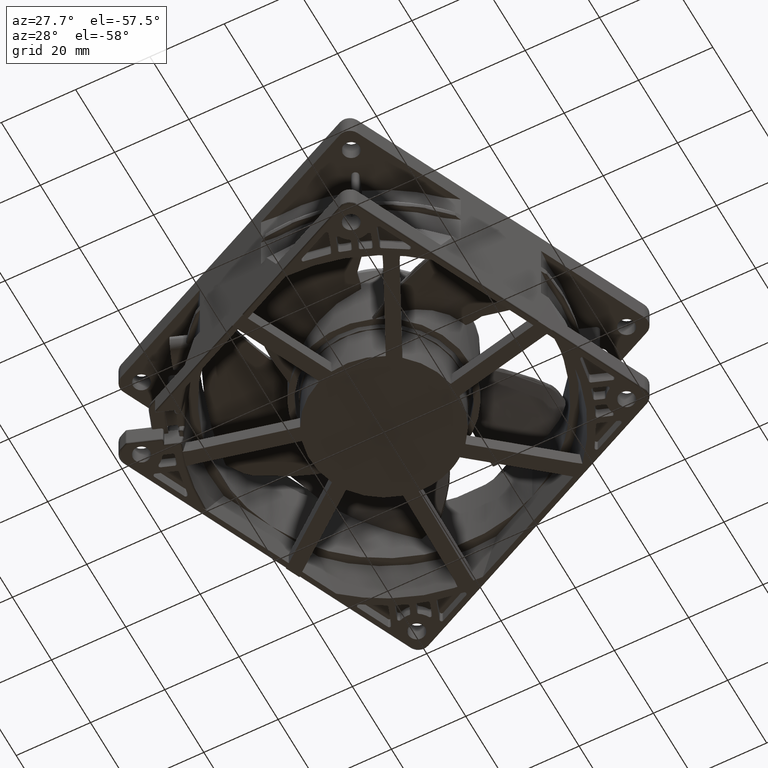
[diagram: clean part render]
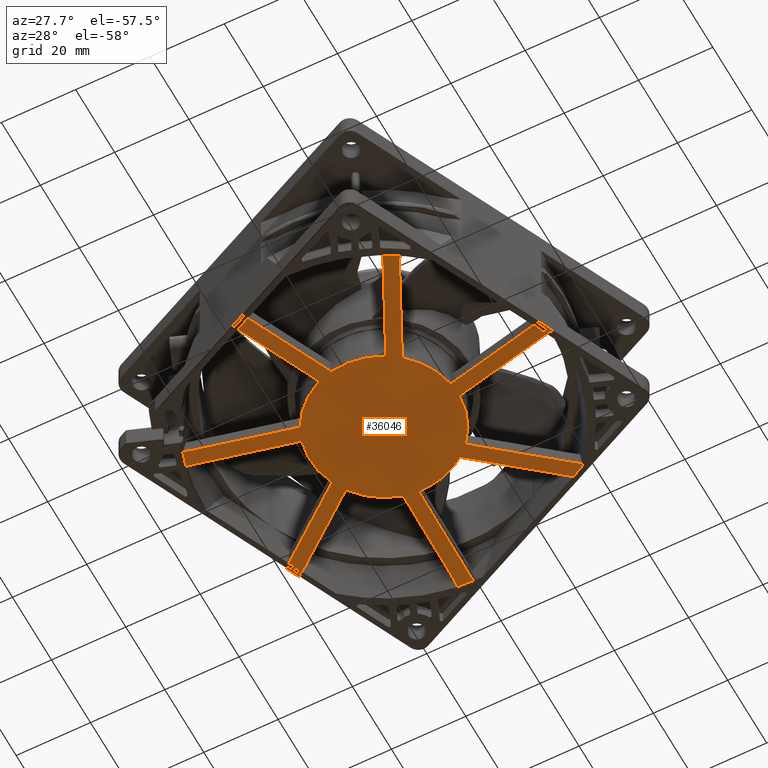
[diagram: same view with one face highlighted and labeled with its STEP entity id]
A machine part, auxiliary view. The second image highlights one B-rep face of the part: STEP entity #36046.
In plain terms, the highlighted planar face has unit normal (0, 0, -1).
Its self-contained STEP definition (entity closure, byte-faithful):
#874 = VERTEX_POINT ( 'NONE', #26847 ) ;
#1118 = CARTESIAN_POINT ( 'NONE',  ( -19.98104217330544300, -0.8706053460605817100, -10.30000000000000100 ) ) ;
#1158 = VECTOR ( 'NONE', #52856, 1000.000000000000000 ) ;
#1276 = CARTESIAN_POINT ( 'NONE',  ( 20.00000000000000000, 2.449293598294706500E-015, -10.30000000000000100 ) ) ;
#1279 = CARTESIAN_POINT ( 'NONE',  ( -32.59056769576125800, 33.30788040791575400, -10.30000000000000100 ) ) ;
#1426 = VECTOR ( 'NONE', #48306, 999.9999999999998900 ) ;
#1647 = VERTEX_POINT ( 'NONE', #31782 ) ;
#1758 = CARTESIAN_POINT ( 'NONE',  ( 18.38003844923794000, -7.885060976589532100, -10.30000000000000100 ) ) ;
#1761 = VERTEX_POINT ( 'NONE', #33719 ) ;
#1850 = DIRECTION ( 'NONE',  ( 0.0000000000000000000, 0.0000000000000000000, -1.000000000000000000 ) ) ;
#1910 = VECTOR ( 'NONE', #5051, 1000.000000000000200 ) ;
#2082 = CARTESIAN_POINT ( 'NONE',  ( 5.294977618193408700, -19.28634781452494100, -10.30000000000000100 ) ) ;
#3070 = DIRECTION ( 'NONE',  ( -1.000000000000000000, 0.0000000000000000000, 0.0000000000000000000 ) ) ;
#3163 = VECTOR ( 'NONE', #59430, 1000.000000000000200 ) ;
#3279 = CARTESIAN_POINT ( 'NONE',  ( -29.68219285570591400, -38.35645222484445300, -10.30000000000000100 ) ) ;
#3982 = ORIENTED_EDGE ( 'NONE', *, *, #56801, .T. ) ;
#4211 = CARTESIAN_POINT ( 'NONE',  ( 19.57500095210961200, -4.101138588844301900, -10.30000000000000100 ) ) ;
#4430 = CARTESIAN_POINT ( 'NONE',  ( 43.81483457461403200, -15.86884593154847200, -10.30000000000000100 ) ) ;
#4453 = CARTESIAN_POINT ( 'NONE',  ( -11.77730935721004400, -16.16462137832411000, -10.30000000000000100 ) ) ;
#4504 = VECTOR ( 'NONE', #54128, 999.9999999999998900 ) ;
#5046 = ORIENTED_EDGE ( 'NONE', *, *, #13576, .T. ) ;
#5051 = DIRECTION ( 'NONE',  ( 0.2194419036016941900, -0.9756255690292585700, 0.0000000000000000000 ) ) ;
#5200 = CARTESIAN_POINT ( 'NONE',  ( 45.60127632765699000, -16.51585896309256500, -10.30000000000000100 ) ) ;
#5341 = AXIS2_PLACEMENT_3D ( 'NONE', #27491, #43035, #22228 ) ;
#5461 = EDGE_CURVE ( 'NONE', #59936, #31693, #26753, .T. ) ;
#5656 = LINE ( 'NONE', #44645, #13504 ) ;
#6147 = VERTEX_POINT ( 'NONE', #38528 ) ;
#6220 = CIRCLE ( 'NONE', #30673, 20.00000000000000000 ) ;
#6285 = DIRECTION ( 'NONE',  ( -0.9207090344809056900, -0.3902497582641638600, 0.0000000000000000000 ) ) ;
#6421 = VERTEX_POINT ( 'NONE', #56825 ) ;
#6460 = LINE ( 'NONE', #49064, #62458 ) ;
#6612 = DIRECTION ( 'NONE',  ( -0.0000000000000000000, 1.000000000000000000, -0.0000000000000000000 ) ) ;
#6615 = LINE ( 'NONE', #12258, #1158 ) ;
#6686 = CARTESIAN_POINT ( 'NONE',  ( 42.32587514962276000, -19.49564804818149000, -10.30000000000000100 ) ) ;
#6698 = LINE ( 'NONE', #52292, #40575 ) ;
#6919 = DIRECTION ( 'NONE',  ( -0.5412167112331257600, -0.8408831497193883800, 0.0000000000000000000 ) ) ;
#7084 = VERTEX_POINT ( 'NONE', #1279 ) ;
#7188 = CARTESIAN_POINT ( 'NONE',  ( -11.77730935721004000, -16.16462137832410700, -10.30000000000000100 ) ) ;
#7436 = EDGE_CURVE ( 'NONE', #1761, #25585, #40958, .T. ) ;
#8092 = VECTOR ( 'NONE', #61605, 1000.000000000000000 ) ;
#8141 = VERTEX_POINT ( 'NONE', #3279 ) ;
#8236 = DIRECTION ( 'NONE',  ( 0.8524649327707815000, 0.5227844090981547100, 0.0000000000000000000 ) ) ;
#8429 = EDGE_CURVE ( 'NONE', #41141, #30154, #32179, .T. ) ;
#8987 = CARTESIAN_POINT ( 'NONE',  ( 0.0000000000000000000, 0.0000000000000000000, -10.30000000000000100 ) ) ;
#9463 = ORIENTED_EDGE ( 'NONE', *, *, #37630, .T. ) ;
#9672 = VECTOR ( 'NONE', #39766, 1000.000000000000200 ) ;
#9846 = DIRECTION ( 'NONE',  ( 0.6213996839968901600, -0.7834937349644634000, 0.0000000000000000000 ) ) ;
#10356 = EDGE_CURVE ( 'NONE', #60652, #31406, #32049, .T. ) ;
#10866 = AXIS2_PLACEMENT_3D ( 'NONE', #61834, #11772, #37526 ) ;
#11122 = LINE ( 'NONE', #4211, #25177 ) ;
#11599 = VERTEX_POINT ( 'NONE', #16705 ) ;
#11714 = DIRECTION ( 'NONE',  ( 0.0000000000000000000, 0.0000000000000000000, -1.000000000000000000 ) ) ;
#11772 = DIRECTION ( 'NONE',  ( 0.0000000000000000000, 0.0000000000000000000, -1.000000000000000000 ) ) ;
#11883 = VECTOR ( 'NONE', #51590, 1000.000000000000000 ) ;
#12233 = ORIENTED_EDGE ( 'NONE', *, *, #64227, .T. ) ;
#12258 = CARTESIAN_POINT ( 'NONE',  ( -33.91936766618984900, 34.66592703399014400, -10.30000000000000100 ) ) ;
#12339 = CIRCLE ( 'NONE', #41356, 20.00000000000000000 ) ;
#12848 = CARTESIAN_POINT ( 'NONE',  ( -0.3575330120689597100, 19.99680399827134300, -10.30000000000000100 ) ) ;
#12899 = ORIENTED_EDGE ( 'NONE', *, *, #51707, .T. ) ;
#13144 = ORIENTED_EDGE ( 'NONE', *, *, #54492, .T. ) ;
#13504 = VECTOR ( 'NONE', #35057, 1000.000000000000000 ) ;
#13576 = EDGE_CURVE ( 'NONE', #35914, #6147, #6698, .T. ) ;
#13685 = CARTESIAN_POINT ( 'NONE',  ( 9.699350100148933500, 46.00000000000000700, -10.30000000000000100 ) ) ;
#13988 = EDGE_CURVE ( 'NONE', #23951, #31646, #51624, .T. ) ;
#14188 = ORIENTED_EDGE ( 'NONE', *, *, #40047, .T. ) ;
#14352 = EDGE_CURVE ( 'NONE', #58538, #44739, #6615, .T. ) ;
#14463 = CARTESIAN_POINT ( 'NONE',  ( 43.38497260466629500, 21.67934851632883700, -10.30000000000000100 ) ) ;
#14595 = DIRECTION ( 'NONE',  ( 0.4853466998572286100, -0.8743217834056847800, 0.0000000000000000000 ) ) ;
#14617 = CARTESIAN_POINT ( 'NONE',  ( 10.10049078346743000, 47.43659015921343100, -10.30000000000000100 ) ) ;
#14686 = ORIENTED_EDGE ( 'NONE', *, *, #16276, .T. ) ;
#14714 = EDGE_CURVE ( 'NONE', #36181, #11599, #47852, .T. ) ;
#14790 = VERTEX_POINT ( 'NONE', #6686 ) ;
#14880 = LINE ( 'NONE', #24447, #3163 ) ;
#15373 = CARTESIAN_POINT ( 'NONE',  ( 11.28173768430840900, -46.00000000000000700, -10.30000000000000100 ) ) ;
#15439 = CARTESIAN_POINT ( 'NONE',  ( -29.67545114487004900, 35.92948092233517300, -10.30000000000000100 ) ) ;
#15574 = LINE ( 'NONE', #39550, #40847 ) ;
#15792 = EDGE_CURVE ( 'NONE', #14790, #50383, #52792, .T. ) ;
#15812 = ORIENTED_EDGE ( 'NONE', *, *, #14352, .T. ) ;
#16086 = EDGE_CURVE ( 'NONE', #6421, #56765, #55114, .T. ) ;
#16134 = CARTESIAN_POINT ( 'NONE',  ( 43.38497260466629500, 21.67934851632883700, -10.30000000000000100 ) ) ;
#16276 = EDGE_CURVE ( 'NONE', #41403, #23843, #58221, .T. ) ;
#16631 = CARTESIAN_POINT ( 'NONE',  ( 0.0000000000000000000, 0.0000000000000000000, -10.30000000000000100 ) ) ;
#16705 = CARTESIAN_POINT ( 'NONE',  ( 5.294977618193408700, -19.28634781452494100, -10.30000000000000100 ) ) ;
#17098 = EDGE_CURVE ( 'NONE', #31646, #41261, #32059, .T. ) ;
#17143 = ORIENTED_EDGE ( 'NONE', *, *, #16086, .T. ) ;
#17502 = CIRCLE ( 'NONE', #43739, 20.00000000000000000 ) ;
#17829 = LINE ( 'NONE', #24433, #4504 ) ;
#18033 = LINE ( 'NONE', #54793, #21171 ) ;
#18086 = EDGE_CURVE ( 'NONE', #55029, #48195, #35955, .T. ) ;
#18320 = CARTESIAN_POINT ( 'NONE',  ( -32.59056769576125800, 33.30788040791575400, -10.30000000000000100 ) ) ;
#18384 = EDGE_CURVE ( 'NONE', #6147, #60652, #49422, .T. ) ;
#18421 = VERTEX_POINT ( 'NONE', #15373 ) ;
#18682 = AXIS2_PLACEMENT_3D ( 'NONE', #8987, #63658, #3070 ) ;
#18714 = FACE_OUTER_BOUND ( 'NONE', #24159, .T. ) ;
#18785 = DIRECTION ( 'NONE',  ( 0.9999964341619808100, -0.002670517426096418900, 0.0000000000000000000 ) ) ;
#19155 = ORIENTED_EDGE ( 'NONE', *, *, #32878, .T. ) ;
#19556 = VECTOR ( 'NONE', #6612, 1000.000000000000000 ) ;
#20207 = CARTESIAN_POINT ( 'NONE',  ( 8.998414202292314800, -17.86137009985471700, -10.30000000000000100 ) ) ;
#20217 = CARTESIAN_POINT ( 'NONE',  ( 41.63206292572044000, 20.93636397631809500, -10.30000000000000100 ) ) ;
#20354 = ORIENTED_EDGE ( 'NONE', *, *, #54708, .T. ) ;
#20600 = ORIENTED_EDGE ( 'NONE', *, *, #18086, .T. ) ;
#20972 = EDGE_CURVE ( 'NONE', #30679, #34001, #21476, .T. ) ;
#21087 = VECTOR ( 'NONE', #26748, 1000.000000000000000 ) ;
#21171 = VECTOR ( 'NONE', #14595, 1000.000000000000100 ) ;
#21369 = DIRECTION ( 'NONE',  ( 0.0000000000000000000, 0.0000000000000000000, -1.000000000000000000 ) ) ;
#21476 = LINE ( 'NONE', #16134, #61069 ) ;
#21549 = DIRECTION ( 'NONE',  ( -0.9021243492795918400, -0.4314761388963162000, 0.0000000000000000000 ) ) ;
#21963 = ORIENTED_EDGE ( 'NONE', *, *, #42115, .T. ) ;
#21999 = DIRECTION ( 'NONE',  ( -1.000000000000000000, 0.0000000000000000000, 0.0000000000000000000 ) ) ;
#22005 = ORIENTED_EDGE ( 'NONE', *, *, #8429, .T. ) ;
#22177 = VECTOR ( 'NONE', #8236, 1000.000000000000100 ) ;
#22228 = DIRECTION ( 'NONE',  ( -1.000000000000000000, 0.0000000000000000000, 0.0000000000000000000 ) ) ;
#22477 = CARTESIAN_POINT ( 'NONE',  ( -46.00000000000000700, -4.714347924271361700, -10.30000000000000100 ) ) ;
#22812 = CARTESIAN_POINT ( 'NONE',  ( -19.41588379257800800, -4.798276414829253200, -10.30000000000000100 ) ) ;
#23326 = CARTESIAN_POINT ( 'NONE',  ( 39.72486586711855200, 24.36175346397412200, -10.30000000000000100 ) ) ;
#23634 = CIRCLE ( 'NONE', #51327, 20.00000000000000000 ) ;
#23843 = VERTEX_POINT ( 'NONE', #13685 ) ;
#23885 = DIRECTION ( 'NONE',  ( 0.6602071521584064200, 0.7510835614223538800, 0.0000000000000000000 ) ) ;
#23951 = VERTEX_POINT ( 'NONE', #20207 ) ;
#24064 = VECTOR ( 'NONE', #43919, 1000.000000000000000 ) ;
#24159 = EDGE_LOOP ( 'NONE', ( #41756, #22005, #34934, #9463, #17143, #46977, #38281, #15812, #12899, #34014, #55592, #29293, #14686, #13144, #5046, #29368, #31652, #62292, #28093, #35926, #37739, #36307, #19155, #29777, #20600, #14188, #56134, #27337, #3982, #29593, #59684, #25552, #46717, #51551, #62328, #20354, #21963, #57815, #40416, #65037, #12233, #47444 ) ) ;
#24433 = CARTESIAN_POINT ( 'NONE',  ( -8.354161976049285300, -18.17162562012359900, -10.30000000000000100 ) ) ;
#24447 = CARTESIAN_POINT ( 'NONE',  ( -30.78986661014619500, 37.47311188211487100, -10.30000000000000100 ) ) ;
#24676 = VECTOR ( 'NONE', #50080, 1000.000000000000000 ) ;
#24708 = CARTESIAN_POINT ( 'NONE',  ( 0.0000000000000000000, 0.0000000000000000000, -10.30000000000000100 ) ) ;
#24931 = VECTOR ( 'NONE', #62090, 1000.000000000000100 ) ;
#25129 = CARTESIAN_POINT ( 'NONE',  ( -25.22069874346373600, -39.18515477692366000, -10.30000000000000100 ) ) ;
#25177 = VECTOR ( 'NONE', #59310, 1000.000000000000000 ) ;
#25198 = LINE ( 'NONE', #61067, #11883 ) ;
#25246 = DIRECTION ( 'NONE',  ( 0.0000000000000000000, 0.0000000000000000000, -1.000000000000000000 ) ) ;
#25552 = ORIENTED_EDGE ( 'NONE', *, *, #49068, .T. ) ;
#25585 = VERTEX_POINT ( 'NONE', #1276 ) ;
#25589 = CARTESIAN_POINT ( 'NONE',  ( 46.00000000000000700, 46.00000000000000700, -10.30000000000000100 ) ) ;
#26258 = EDGE_CURVE ( 'NONE', #34001, #1761, #56843, .T. ) ;
#26390 = DIRECTION ( 'NONE',  ( 0.0000000000000000000, 0.0000000000000000000, -1.000000000000000000 ) ) ;
#26748 = DIRECTION ( 'NONE',  ( -0.8998069611071593000, 0.4362882450205359800, 0.0000000000000000000 ) ) ;
#26753 = LINE ( 'NONE', #62711, #39410 ) ;
#26847 = CARTESIAN_POINT ( 'NONE',  ( -8.354161976049285300, -18.17162562012359900, -10.30000000000000100 ) ) ;
#27017 = DIRECTION ( 'NONE',  ( -0.2251237024613815300, -0.9743301897150058500, 0.0000000000000000000 ) ) ;
#27337 = ORIENTED_EDGE ( 'NONE', *, *, #15792, .T. ) ;
#27491 = CARTESIAN_POINT ( 'NONE',  ( 0.0000000000000000000, 0.0000000000000000000, -10.30000000000000100 ) ) ;
#27924 = CARTESIAN_POINT ( 'NONE',  ( -28.42524471705728600, -36.92648727912558100, -10.30000000000000100 ) ) ;
#28093 = ORIENTED_EDGE ( 'NONE', *, *, #51779, .T. ) ;
#29293 = ORIENTED_EDGE ( 'NONE', *, *, #31845, .T. ) ;
#29310 = DIRECTION ( 'NONE',  ( -1.000000000000000000, 0.0000000000000000000, 0.0000000000000000000 ) ) ;
#29368 = ORIENTED_EDGE ( 'NONE', *, *, #18384, .T. ) ;
#29523 = VECTOR ( 'NONE', #36844, 1000.000000000000000 ) ;
#29593 = ORIENTED_EDGE ( 'NONE', *, *, #13988, .T. ) ;
#29777 = ORIENTED_EDGE ( 'NONE', *, *, #56699, .T. ) ;
#29902 = DIRECTION ( 'NONE',  ( -1.000000000000000000, 0.0000000000000000000, -0.0000000000000000000 ) ) ;
#30039 = EDGE_CURVE ( 'NONE', #31406, #48564, #41980, .T. ) ;
#30154 = VERTEX_POINT ( 'NONE', #39903 ) ;
#30348 = DIRECTION ( 'NONE',  ( -1.000000000000000000, 0.0000000000000000000, 0.0000000000000000000 ) ) ;
#30594 = CARTESIAN_POINT ( 'NONE',  ( 5.663960261964806600, 46.00000000000000700, -10.30000000000000100 ) ) ;
#30673 = AXIS2_PLACEMENT_3D ( 'NONE', #51711, #21369, #29310 ) ;
#30679 = VERTEX_POINT ( 'NONE', #14463 ) ;
#30805 = LINE ( 'NONE', #18320, #38749 ) ;
#31239 = VERTEX_POINT ( 'NONE', #37943 ) ;
#31406 = VERTEX_POINT ( 'NONE', #23326 ) ;
#31547 = VERTEX_POINT ( 'NONE', #7188 ) ;
#31563 = CARTESIAN_POINT ( 'NONE',  ( 45.60127632765699000, -16.51585896309256500, -10.30000000000000100 ) ) ;
#31646 = VERTEX_POINT ( 'NONE', #58327 ) ;
#31652 = ORIENTED_EDGE ( 'NONE', *, *, #10356, .T. ) ;
#31693 = VERTEX_POINT ( 'NONE', #37777 ) ;
#31750 = EDGE_CURVE ( 'NONE', #7084, #58538, #30805, .T. ) ;
#31782 = CARTESIAN_POINT ( 'NONE',  ( 43.99968516239239600, -20.40288473746888800, -10.30000000000000100 ) ) ;
#31814 = EDGE_CURVE ( 'NONE', #56765, #7084, #6460, .T. ) ;
#31845 = EDGE_CURVE ( 'NONE', #33858, #41403, #5656, .T. ) ;
#31977 = VERTEX_POINT ( 'NONE', #15439 ) ;
#32049 = LINE ( 'NONE', #41373, #24931 ) ;
#32059 = LINE ( 'NONE', #52953, #1426 ) ;
#32124 = VECTOR ( 'NONE', #41546, 1000.000000000000000 ) ;
#32179 = LINE ( 'NONE', #61301, #19556 ) ;
#32214 = CARTESIAN_POINT ( 'NONE',  ( -26.24901049480710900, -40.78283276139117000, -10.30000000000000100 ) ) ;
#32437 = DIRECTION ( 'NONE',  ( -0.8166362712865372600, 0.5771526664750160600, 0.0000000000000000000 ) ) ;
#32871 = EDGE_CURVE ( 'NONE', #46830, #18421, #25198, .T. ) ;
#32878 = EDGE_CURVE ( 'NONE', #25585, #57946, #23634, .T. ) ;
#33370 = DIRECTION ( 'NONE',  ( -0.9604005118156396800, -0.2786231449543583000, 0.0000000000000000000 ) ) ;
#33638 = EDGE_CURVE ( 'NONE', #40806, #33858, #57596, .T. ) ;
#33665 = AXIS2_PLACEMENT_3D ( 'NONE', #24708, #26390, #29902 ) ;
#33719 = CARTESIAN_POINT ( 'NONE',  ( 17.62455544354906000, 9.453837602649278100, -10.30000000000000100 ) ) ;
#33734 = EDGE_CURVE ( 'NONE', #31693, #8141, #59913, .T. ) ;
#33858 = VERTEX_POINT ( 'NONE', #12848 ) ;
#34001 = VERTEX_POINT ( 'NONE', #20217 ) ;
#34014 = ORIENTED_EDGE ( 'NONE', *, *, #35970, .T. ) ;
#34825 = VECTOR ( 'NONE', #44983, 1000.000000000000000 ) ;
#34934 = ORIENTED_EDGE ( 'NONE', *, *, #35005, .T. ) ;
#35005 = EDGE_CURVE ( 'NONE', #30154, #56853, #35309, .T. ) ;
#35057 = DIRECTION ( 'NONE',  ( 0.2255977464107338200, 0.9742205380787238900, 0.0000000000000000000 ) ) ;
#35309 = LINE ( 'NONE', #49099, #56708 ) ;
#35383 = EDGE_CURVE ( 'NONE', #31547, #31239, #6220, .T. ) ;
#35620 = CARTESIAN_POINT ( 'NONE',  ( 8.998414202292311300, -17.86137009985471700, -10.30000000000000100 ) ) ;
#35914 = VERTEX_POINT ( 'NONE', #65376 ) ;
#35926 = ORIENTED_EDGE ( 'NONE', *, *, #20972, .T. ) ;
#35955 = LINE ( 'NONE', #53848, #24064 ) ;
#35970 = EDGE_CURVE ( 'NONE', #31977, #40806, #15574, .T. ) ;
#36046 = ADVANCED_FACE ( 'NONE', ( #18714 ), #48310, .T. ) ;
#36134 = CARTESIAN_POINT ( 'NONE',  ( -30.78986661014619500, 37.47311188211487100, -10.30000000000000100 ) ) ;
#36181 = VERTEX_POINT ( 'NONE', #47703 ) ;
#36307 = ORIENTED_EDGE ( 'NONE', *, *, #7436, .T. ) ;
#36844 = DIRECTION ( 'NONE',  ( -0.2199165785040286800, 0.9755186817786123400, 0.0000000000000000000 ) ) ;
#37469 = CARTESIAN_POINT ( 'NONE',  ( 0.0000000000000000000, 0.0000000000000000000, -10.30000000000000100 ) ) ;
#37526 = DIRECTION ( 'NONE',  ( -1.000000000000000000, 0.0000000000000000000, 0.0000000000000000000 ) ) ;
#37630 = EDGE_CURVE ( 'NONE', #56853, #6421, #12339, .T. ) ;
#37739 = ORIENTED_EDGE ( 'NONE', *, *, #26258, .T. ) ;
#37777 = CARTESIAN_POINT ( 'NONE',  ( -26.24901049480710900, -40.78283276139117000, -10.30000000000000100 ) ) ;
#37943 = CARTESIAN_POINT ( 'NONE',  ( -19.41588379257800800, -4.798276414829252300, -10.30000000000000100 ) ) ;
#38281 = ORIENTED_EDGE ( 'NONE', *, *, #31750, .T. ) ;
#38528 = CARTESIAN_POINT ( 'NONE',  ( 3.597422713455342300, 19.67380364395038900, -10.30000000000000100 ) ) ;
#38613 = AXIS2_PLACEMENT_3D ( 'NONE', #41432, #25246, #30348 ) ;
#38749 = VECTOR ( 'NONE', #58765, 1000.000000000000000 ) ;
#38931 = CARTESIAN_POINT ( 'NONE',  ( 18.38003844923793700, -7.885060976589532100, -10.30000000000000100 ) ) ;
#39410 = VECTOR ( 'NONE', #6919, 1000.000000000000000 ) ;
#39550 = CARTESIAN_POINT ( 'NONE',  ( -13.13864269392031600, 15.07899426889918200, -10.30000000000000100 ) ) ;
#39675 = LINE ( 'NONE', #64542, #61060 ) ;
#39682 = CARTESIAN_POINT ( 'NONE',  ( 41.34454923938373100, 25.35504384126103300, -10.30000000000000100 ) ) ;
#39766 = DIRECTION ( 'NONE',  ( -0.2689431464415825100, -0.9631560538054575500, 0.0000000000000000000 ) ) ;
#39903 = CARTESIAN_POINT ( 'NONE',  ( -46.00000000000000700, -0.8011210180056682600, -10.30000000000000100 ) ) ;
#39991 = VECTOR ( 'NONE', #47049, 1000.000000000000200 ) ;
#40047 = EDGE_CURVE ( 'NONE', #48195, #1647, #53908, .T. ) ;
#40416 = ORIENTED_EDGE ( 'NONE', *, *, #33734, .T. ) ;
#40575 = VECTOR ( 'NONE', #27017, 1000.000000000000200 ) ;
#40806 = VERTEX_POINT ( 'NONE', #50387 ) ;
#40847 = VECTOR ( 'NONE', #9846, 1000.000000000000300 ) ;
#40958 = CIRCLE ( 'NONE', #5341, 20.00000000000000000 ) ;
#41141 = VERTEX_POINT ( 'NONE', #22477 ) ;
#41261 = VERTEX_POINT ( 'NONE', #44593 ) ;
#41313 = CARTESIAN_POINT ( 'NONE',  ( 19.57500095210961200, -4.101138588844302800, -10.30000000000000100 ) ) ;
#41356 = AXIS2_PLACEMENT_3D ( 'NONE', #37469, #11714, #47005 ) ;
#41373 = CARTESIAN_POINT ( 'NONE',  ( 15.41121272773830400, 12.74733392754724000, -10.30000000000000100 ) ) ;
#41403 = VERTEX_POINT ( 'NONE', #30594 ) ;
#41432 = CARTESIAN_POINT ( 'NONE',  ( 0.0000000000000000000, 0.0000000000000000000, -10.30000000000000100 ) ) ;
#41436 = LINE ( 'NONE', #22812, #44634 ) ;
#41546 = DIRECTION ( 'NONE',  ( 1.000000000000000000, -0.0000000000000000000, -0.0000000000000000000 ) ) ;
#41756 = ORIENTED_EDGE ( 'NONE', *, *, #45034, .T. ) ;
#41839 = DIRECTION ( 'NONE',  ( 0.0000000000000000000, 0.0000000000000000000, -1.000000000000000000 ) ) ;
#41980 = LINE ( 'NONE', #48372, #22177 ) ;
#42115 = EDGE_CURVE ( 'NONE', #874, #59936, #17829, .T. ) ;
#42557 = CARTESIAN_POINT ( 'NONE',  ( -33.91936766618984900, 34.66592703399014400, -10.30000000000000100 ) ) ;
#43035 = DIRECTION ( 'NONE',  ( 0.0000000000000000000, 0.0000000000000000000, -1.000000000000000000 ) ) ;
#43435 = VECTOR ( 'NONE', #21549, 1000.000000000000100 ) ;
#43739 = AXIS2_PLACEMENT_3D ( 'NONE', #56295, #1850, #21999 ) ;
#43919 = DIRECTION ( 'NONE',  ( 0.9402325016011559000, -0.3405331744967475800, 0.0000000000000000000 ) ) ;
#44593 = CARTESIAN_POINT ( 'NONE',  ( 15.51931224468852700, -45.94998310611175200, -10.30000000000000100 ) ) ;
#44634 = VECTOR ( 'NONE', #58001, 1000.000000000000100 ) ;
#44645 = CARTESIAN_POINT ( 'NONE',  ( -0.3575330120689588200, 19.99680399827134600, -10.30000000000000100 ) ) ;
#44739 = VERTEX_POINT ( 'NONE', #36134 ) ;
#44983 = DIRECTION ( 'NONE',  ( -0.8791622405145065300, 0.4765225648943742200, 0.0000000000000000000 ) ) ;
#45034 = EDGE_CURVE ( 'NONE', #31239, #41141, #41436, .T. ) ;
#46114 = CARTESIAN_POINT ( 'NONE',  ( 15.41121272773830400, 12.74733392754724200, -10.30000000000000100 ) ) ;
#46716 = DIRECTION ( 'NONE',  ( -1.000000000000000000, 0.0000000000000000000, 0.0000000000000000000 ) ) ;
#46717 = ORIENTED_EDGE ( 'NONE', *, *, #32871, .T. ) ;
#46830 = VERTEX_POINT ( 'NONE', #48488 ) ;
#46926 = DIRECTION ( 'NONE',  ( 0.0000000000000000000, 0.0000000000000000000, -1.000000000000000000 ) ) ;
#46977 = ORIENTED_EDGE ( 'NONE', *, *, #31814, .T. ) ;
#47005 = DIRECTION ( 'NONE',  ( -1.000000000000000000, 0.0000000000000000000, 0.0000000000000000000 ) ) ;
#47049 = DIRECTION ( 'NONE',  ( -0.1755883477992307200, 0.9844636773985804300, 0.0000000000000000000 ) ) ;
#47444 = ORIENTED_EDGE ( 'NONE', *, *, #35383, .T. ) ;
#47703 = CARTESIAN_POINT ( 'NONE',  ( 11.14744009535097800, -45.24703945365461500, -10.30000000000000100 ) ) ;
#47852 = LINE ( 'NONE', #2082, #29523 ) ;
#48195 = VERTEX_POINT ( 'NONE', #5200 ) ;
#48306 = DIRECTION ( 'NONE',  ( 0.3199858194781071100, -0.9474223320847595700, 0.0000000000000000000 ) ) ;
#48310 = PLANE ( 'NONE',  #33665 ) ;
#48372 = CARTESIAN_POINT ( 'NONE',  ( 39.72486586711855200, 24.36175346397412200, -10.30000000000000100 ) ) ;
#48488 = CARTESIAN_POINT ( 'NONE',  ( 15.34690642930812400, -46.00000000000000700, -10.30000000000000100 ) ) ;
#48564 = VERTEX_POINT ( 'NONE', #39682 ) ;
#49064 = CARTESIAN_POINT ( 'NONE',  ( -15.85704910144397300, 12.18827279783296400, -10.30000000000000100 ) ) ;
#49068 = EDGE_CURVE ( 'NONE', #41261, #46830, #51479, .T. ) ;
#49099 = CARTESIAN_POINT ( 'NONE',  ( -19.98104217330544700, -0.8706053460605812600, -10.30000000000000100 ) ) ;
#49138 = VECTOR ( 'NONE', #33370, 1000.000000000000100 ) ;
#49209 = CARTESIAN_POINT ( 'NONE',  ( 43.99968516239239600, -20.40288473746888800, -10.30000000000000100 ) ) ;
#49422 = CIRCLE ( 'NONE', #38613, 20.00000000000000000 ) ;
#49904 = LINE ( 'NONE', #14617, #9672 ) ;
#50080 = DIRECTION ( 'NONE',  ( 0.6255754731932936500, 0.7801636542027491400, -0.0000000000000000000 ) ) ;
#50383 = VERTEX_POINT ( 'NONE', #38931 ) ;
#50387 = CARTESIAN_POINT ( 'NONE',  ( -13.13864269392031600, 15.07899426889918500, -10.30000000000000100 ) ) ;
#51327 = AXIS2_PLACEMENT_3D ( 'NONE', #56443, #41839, #51811 ) ;
#51370 = CARTESIAN_POINT ( 'NONE',  ( -15.85704910144397700, 12.18827279783296500, -10.30000000000000100 ) ) ;
#51479 = LINE ( 'NONE', #53521, #49138 ) ;
#51510 = LINE ( 'NONE', #49209, #34825 ) ;
#51551 = ORIENTED_EDGE ( 'NONE', *, *, #60069, .T. ) ;
#51590 = DIRECTION ( 'NONE',  ( -1.000000000000000000, 0.0000000000000000000, 0.0000000000000000000 ) ) ;
#51624 = LINE ( 'NONE', #35620, #1910 ) ;
#51707 = EDGE_CURVE ( 'NONE', #44739, #31977, #14880, .T. ) ;
#51711 = CARTESIAN_POINT ( 'NONE',  ( 0.0000000000000000000, 0.0000000000000000000, -10.30000000000000100 ) ) ;
#51779 = EDGE_CURVE ( 'NONE', #48564, #30679, #18033, .T. ) ;
#51811 = DIRECTION ( 'NONE',  ( -1.000000000000000000, 0.0000000000000000000, 0.0000000000000000000 ) ) ;
#51884 = CARTESIAN_POINT ( 'NONE',  ( 17.62455544354905600, 9.453837602649278100, -10.30000000000000100 ) ) ;
#52143 = CIRCLE ( 'NONE', #60241, 20.00000000000000000 ) ;
#52292 = CARTESIAN_POINT ( 'NONE',  ( 3.597422713455341800, 19.67380364395038900, -10.30000000000000100 ) ) ;
#52792 = LINE ( 'NONE', #1758, #21087 ) ;
#52856 = DIRECTION ( 'NONE',  ( 0.7444009099259447600, 0.6677329445979324200, 0.0000000000000000000 ) ) ;
#52953 = CARTESIAN_POINT ( 'NONE',  ( 14.91133918767986800, -44.14988067514995200, -10.30000000000000100 ) ) ;
#53521 = CARTESIAN_POINT ( 'NONE',  ( 15.51931224468852700, -45.94998310611175200, -10.30000000000000100 ) ) ;
#53848 = CARTESIAN_POINT ( 'NONE',  ( 43.81483457461403200, -15.86884593154847200, -10.30000000000000100 ) ) ;
#53908 = LINE ( 'NONE', #31563, #8092 ) ;
#54128 = DIRECTION ( 'NONE',  ( -0.6259549959717272100, -0.7798591815308934000, 0.0000000000000000000 ) ) ;
#54274 = LINE ( 'NONE', #61809, #39991 ) ;
#54492 = EDGE_CURVE ( 'NONE', #23843, #35914, #49904, .T. ) ;
#54708 = EDGE_CURVE ( 'NONE', #11599, #874, #17502, .T. ) ;
#54793 = CARTESIAN_POINT ( 'NONE',  ( 41.34454923938373100, 25.35504384126103300, -10.30000000000000100 ) ) ;
#54973 = EDGE_CURVE ( 'NONE', #1647, #14790, #51510, .T. ) ;
#55029 = VERTEX_POINT ( 'NONE', #4430 ) ;
#55114 = CIRCLE ( 'NONE', #18682, 20.00000000000000000 ) ;
#55592 = ORIENTED_EDGE ( 'NONE', *, *, #33638, .T. ) ;
#56134 = ORIENTED_EDGE ( 'NONE', *, *, #54973, .T. ) ;
#56295 = CARTESIAN_POINT ( 'NONE',  ( 0.0000000000000000000, 0.0000000000000000000, -10.30000000000000100 ) ) ;
#56443 = CARTESIAN_POINT ( 'NONE',  ( 0.0000000000000000000, 0.0000000000000000000, -10.30000000000000100 ) ) ;
#56699 = EDGE_CURVE ( 'NONE', #57946, #55029, #11122, .T. ) ;
#56708 = VECTOR ( 'NONE', #18785, 1000.000000000000100 ) ;
#56765 = VERTEX_POINT ( 'NONE', #51370 ) ;
#56801 = EDGE_CURVE ( 'NONE', #50383, #23951, #52143, .T. ) ;
#56825 = CARTESIAN_POINT ( 'NONE',  ( -20.00000000000000000, 0.0000000000000000000, -10.30000000000000100 ) ) ;
#56843 = LINE ( 'NONE', #51884, #43435 ) ;
#56853 = VERTEX_POINT ( 'NONE', #1118 ) ;
#57596 = CIRCLE ( 'NONE', #10866, 20.00000000000000000 ) ;
#57815 = ORIENTED_EDGE ( 'NONE', *, *, #5461, .T. ) ;
#57946 = VERTEX_POINT ( 'NONE', #41313 ) ;
#58001 = DIRECTION ( 'NONE',  ( -0.9999950164234993100, 0.003157075888436223100, 0.0000000000000000000 ) ) ;
#58221 = LINE ( 'NONE', #25589, #32124 ) ;
#58327 = CARTESIAN_POINT ( 'NONE',  ( 14.91133918767986800, -44.14988067514995200, -10.30000000000000100 ) ) ;
#58538 = VERTEX_POINT ( 'NONE', #42557 ) ;
#58765 = DIRECTION ( 'NONE',  ( -0.6993684054884362600, 0.7147613821441126700, 0.0000000000000000000 ) ) ;
#59183 = DIRECTION ( 'NONE',  ( -0.6210183933274867600, 0.7837959907711616900, 0.0000000000000000000 ) ) ;
#59310 = DIRECTION ( 'NONE',  ( 0.8995945739639852300, -0.4367260039138451400, 0.0000000000000000000 ) ) ;
#59430 = DIRECTION ( 'NONE',  ( 0.5853424163086534700, -0.8107861960282419800, 0.0000000000000000000 ) ) ;
#59684 = ORIENTED_EDGE ( 'NONE', *, *, #17098, .T. ) ;
#59913 = LINE ( 'NONE', #32214, #62325 ) ;
#59936 = VERTEX_POINT ( 'NONE', #25129 ) ;
#60069 = EDGE_CURVE ( 'NONE', #18421, #36181, #54274, .T. ) ;
#60241 = AXIS2_PLACEMENT_3D ( 'NONE', #16631, #46926, #46716 ) ;
#60652 = VERTEX_POINT ( 'NONE', #46114 ) ;
#61060 = VECTOR ( 'NONE', #23885, 1000.000000000000200 ) ;
#61067 = CARTESIAN_POINT ( 'NONE',  ( 46.00000000000000700, -46.00000000000000700, -10.30000000000000100 ) ) ;
#61069 = VECTOR ( 'NONE', #6285, 1000.000000000000200 ) ;
#61301 = CARTESIAN_POINT ( 'NONE',  ( -46.00000000000000700, 46.00000000000000700, -10.30000000000000100 ) ) ;
#61605 = DIRECTION ( 'NONE',  ( -0.3809635783473862600, -0.9245900453567272900, 0.0000000000000000000 ) ) ;
#61809 = CARTESIAN_POINT ( 'NONE',  ( 11.48173736282692300, -47.12132964095090400, -10.30000000000000100 ) ) ;
#61834 = CARTESIAN_POINT ( 'NONE',  ( 0.0000000000000000000, 0.0000000000000000000, -10.30000000000000100 ) ) ;
#62090 = DIRECTION ( 'NONE',  ( 0.9023341817462963200, 0.4310371497356599900, 0.0000000000000000000 ) ) ;
#62292 = ORIENTED_EDGE ( 'NONE', *, *, #30039, .T. ) ;
#62325 = VECTOR ( 'NONE', #32437, 1000.000000000000100 ) ;
#62328 = ORIENTED_EDGE ( 'NONE', *, *, #14714, .T. ) ;
#62347 = VERTEX_POINT ( 'NONE', #27924 ) ;
#62458 = VECTOR ( 'NONE', #59183, 1000.000000000000100 ) ;
#62711 = CARTESIAN_POINT ( 'NONE',  ( -25.22069874346373600, -39.18515477692366000, -10.30000000000000100 ) ) ;
#63658 = DIRECTION ( 'NONE',  ( 0.0000000000000000000, 0.0000000000000000000, -1.000000000000000000 ) ) ;
#64227 = EDGE_CURVE ( 'NONE', #62347, #31547, #65021, .T. ) ;
#64542 = CARTESIAN_POINT ( 'NONE',  ( -29.68219285570591400, -38.35645222484445300, -10.30000000000000100 ) ) ;
#64694 = EDGE_CURVE ( 'NONE', #8141, #62347, #39675, .T. ) ;
#65021 = LINE ( 'NONE', #4453, #24676 ) ;
#65037 = ORIENTED_EDGE ( 'NONE', *, *, #64694, .T. ) ;
#65376 = CARTESIAN_POINT ( 'NONE',  ( 9.588458179432654700, 45.60286690265522200, -10.30000000000000100 ) ) ;